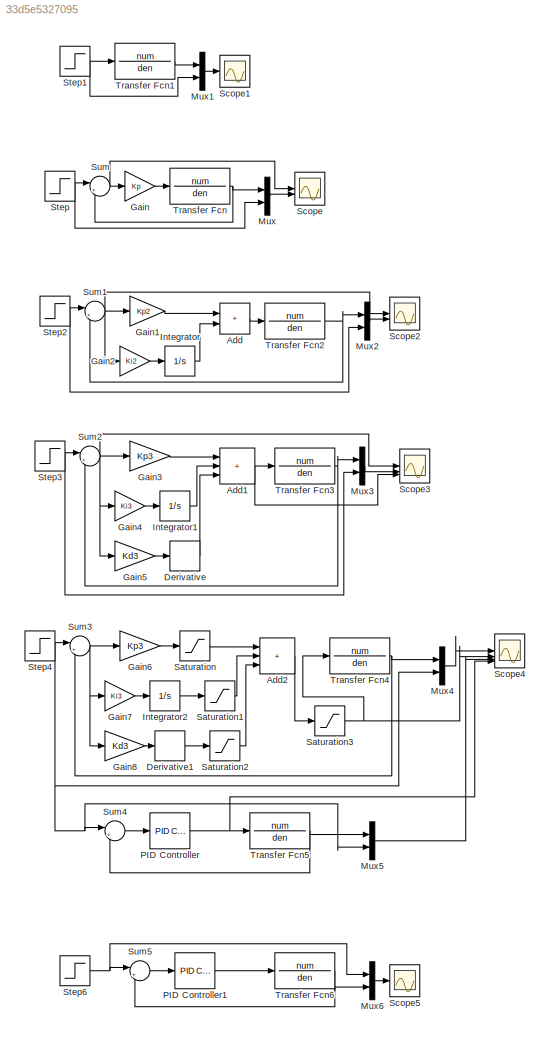
MODEL slx_33d5e5327095
KIND model
CONFIG AbsTol = auto
CONFIG EnableMultiTasking = off
CONFIG FixedStep = 1e-6
CONFIG MaxStep = auto
CONFIG MinStep = auto
CONFIG RelTol = 1e-3
CONFIG SampleTimeConstraint = Unconstrained
CONFIG SolverName = ode4
CONFIG StartTime = 0.0
CONFIG StopTime = 0.050
BLOCK [Sum] Add
  IconShape = rectangular
BLOCK [Sum] Add1
  IconShape = rectangular
  Inputs = +++
BLOCK [Sum] Add2
  IconShape = rectangular
  Inputs = +++
BLOCK [Derivative] Derivative
BLOCK [Derivative] Derivative1
BLOCK [Gain] Gain
  Gain = Kp
BLOCK [Gain] Gain1
  Gain = Kp2
BLOCK [Gain] Gain2
  Gain = Ki2
BLOCK [Gain] Gain3
  Gain = Kp3
BLOCK [Gain] Gain4
  Gain = Ki3
BLOCK [Gain] Gain5
  Gain = Kd3
BLOCK [Gain] Gain6
  Gain = Kp3
BLOCK [Gain] Gain7
  Gain = Ki3
BLOCK [Gain] Gain8
  Gain = Kd3
BLOCK [Integrator] Integrator
BLOCK [Integrator] Integrator1
BLOCK [Integrator] Integrator2
BLOCK [Mux] Mux
  DisplayOption = bar
  Inputs = 2
BLOCK [Mux] Mux1
  DisplayOption = bar
  Inputs = 2
BLOCK [Mux] Mux2
  DisplayOption = bar
  Inputs = 2
BLOCK [Mux] Mux3
  DisplayOption = bar
  Inputs = 2
BLOCK [Mux] Mux4
  DisplayOption = bar
  Inputs = 2
BLOCK [Mux] Mux5
  DisplayOption = bar
  Inputs = 2
BLOCK [Mux] Mux6
  DisplayOption = bar
  Inputs = 2
BLOCK [Reference] PID Controller  REF=slpidlib/PID Controller
  LibrarySourceBlock = simulink/Continuous/PID Controller
  SourceBlock = slpidlib/PID Controller
  SourceType = PID 1dof
BLOCK [Reference] PID Controller1  REF=slpidlib/PID Controller
  LibrarySourceBlock = simulink/Continuous/PID Controller
  SourceBlock = slpidlib/PID Controller
  SourceType = PID 1dof
BLOCK [Saturate] Saturation
  LowerLimit = -15
  UpperLimit = 15
BLOCK [Saturate] Saturation1
  LowerLimit = -15
  UpperLimit = 15
BLOCK [Saturate] Saturation2
  LowerLimit = -15
  UpperLimit = 15
BLOCK [Saturate] Saturation3
  LowerLimit = -15
  UpperLimit = 15
BLOCK [Scope] Scope
  Floating = off
  NumInputPorts = 2
  ScopeSpecificationString = Simulink.scopes.TimeScopeBlockCfg('CurrentConfiguration', extmgr.ConfigurationSet(extmgr.Configuration('Core','General UI',true),extmgr.Configuration('Core','Source UI',true),extmgr.Configuration('Sources','WiredSimulink',true),extmgr.Configuration('Visuals','Time Domain',true,'SerializedDisplays',{struct('MinYLimReal','-5.93815','MaxYLimReal','6.21535','YLabelReal','','MinYLimMag','0.00000','MaxY...<+2296ch>
BLOCK [Scope] Scope1
  Floating = off
  NumInputPorts = 1
  ScopeSpecificationString = Simulink.scopes.TimeScopeBlockCfg('CurrentConfiguration', extmgr.ConfigurationSet(extmgr.Configuration('Core','General UI',true),extmgr.Configuration('Core','Source UI',true),extmgr.Configuration('Sources','WiredSimulink',true,'DataLoggingVariableName','ScopeData1'),extmgr.Configuration('Visuals','Time Domain',true,'SerializedDisplays',{struct('MinYLimReal','-1.0563','MaxYLimReal','9.50672','YLabe...<+1492ch>
BLOCK [Scope] Scope2
  Floating = off
  NumInputPorts = 2
  ScopeSpecificationString = Simulink.scopes.TimeScopeBlockCfg('CurrentConfiguration', extmgr.ConfigurationSet(extmgr.Configuration('Core','General UI',true),extmgr.Configuration('Core','Source UI',true),extmgr.Configuration('Sources','WiredSimulink',true,'DataLoggingVariableName','ScopeData2'),extmgr.Configuration('Visuals','Time Domain',true,'SerializedDisplays',{struct('MinYLimReal','-5.31404','MaxYLimReal','6.146','YLabel...<+2332ch>
BLOCK [Scope] Scope3
  Floating = off
  NumInputPorts = 3
  ScopeSpecificationString = Simulink.scopes.TimeScopeBlockCfg('CurrentConfiguration', extmgr.ConfigurationSet(extmgr.Configuration('Core','General UI',true),extmgr.Configuration('Core','Source UI',true),extmgr.Configuration('Sources','WiredSimulink',true,'DataLoggingVariableName','ScopeData3'),extmgr.Configuration('Visuals','Time Domain',true,'SerializedDisplays',{struct('MinYLimReal','-1.00752','MaxYLimReal','5.6675','YLabe...<+3061ch>
BLOCK [Scope] Scope4
  Floating = off
  NumInputPorts = 4
  ScopeSpecificationString = Simulink.scopes.TimeScopeBlockCfg('CurrentConfiguration', extmgr.ConfigurationSet(extmgr.Configuration('Core','General UI',true),extmgr.Configuration('Core','Source UI',true),extmgr.Configuration('Sources','WiredSimulink',true,'DataLoggingVariableName','ScopeData4'),extmgr.Configuration('Visuals','Time Domain',true,'SerializedDisplays',{struct('MinYLimReal','-0.91239','MaxYLimReal','8.21148','YLab...<+3921ch>
BLOCK [Scope] Scope5
  Floating = off
  NumInputPorts = 1
  ScopeSpecificationString = Simulink.scopes.TimeScopeBlockCfg('CurrentConfiguration', extmgr.ConfigurationSet(extmgr.Configuration('Core','General UI',true),extmgr.Configuration('Core','Source UI',true),extmgr.Configuration('Sources','WiredSimulink',true,'DataLoggingVariableName','ScopeData1'),extmgr.Configuration('Visuals','Time Domain',true,'SerializedDisplays',{struct('MinYLimReal','-0.87414','MaxYLimReal','7.86723','YLab...<+1494ch>
BLOCK [Step] Step
  After = 5
  SampleTime = 0
  Time = 0.01
  VectorParams1D = off
BLOCK [Step] Step1
  After = 5
  SampleTime = 0
  Time = 0.01
  VectorParams1D = off
BLOCK [Step] Step2
  After = 5
  SampleTime = 0
  Time = 0.01
  VectorParams1D = off
BLOCK [Step] Step3
  After = 5
  SampleTime = 0
  Time = 0.01
  VectorParams1D = off
BLOCK [Step] Step4
  After = 5
  SampleTime = 0
  Time = 0.01
  VectorParams1D = off
BLOCK [Step] Step6
  After = 5
  SampleTime = 0
  Time = 0.01
  VectorParams1D = off
BLOCK [Sum] Sum
  Inputs = |+-
BLOCK [Sum] Sum1
  Inputs = |+-
BLOCK [Sum] Sum2
  Inputs = |+-
BLOCK [Sum] Sum3
  Inputs = |+-
BLOCK [Sum] Sum4
  Inputs = |+-
BLOCK [Sum] Sum5
  Inputs = |+-
BLOCK [TransferFcn] Transfer Fcn
  Denominator = den
  Numerator = num
BLOCK [TransferFcn] Transfer Fcn1
  Denominator = den
  Numerator = num
BLOCK [TransferFcn] Transfer Fcn2
  Denominator = den
  Numerator = num
BLOCK [TransferFcn] Transfer Fcn3
  Denominator = den
  Numerator = num
BLOCK [TransferFcn] Transfer Fcn4
  Denominator = den
  Numerator = num
BLOCK [TransferFcn] Transfer Fcn5
  Denominator = den
  Numerator = num
BLOCK [TransferFcn] Transfer Fcn6
  Denominator = den
  Numerator = num
NET Add1:1 -> Scope3:3, Transfer Fcn3:1
LINE Add2:1 -> Saturation3:1
LINE Add:1 -> Transfer Fcn2:1
LINE Derivative1:1 -> Saturation2:1
LINE Derivative:1 -> Add1:3
LINE Gain1:1 -> Add:1
LINE Gain2:1 -> Integrator:1
LINE Gain3:1 -> Add1:1
LINE Gain4:1 -> Integrator1:1
LINE Gain5:1 -> Derivative:1
LINE Gain6:1 -> Saturation:1
LINE Gain7:1 -> Integrator2:1
LINE Gain8:1 -> Derivative1:1
LINE Gain:1 -> Transfer Fcn:1
LINE Integrator1:1 -> Add1:2
LINE Integrator2:1 -> Saturation1:1
LINE Integrator:1 -> Add:2
LINE Mux1:1 -> Scope1:1
LINE Mux2:1 -> Scope2:2
LINE Mux3:1 -> Scope3:2
LINE Mux4:1 -> Scope4:1
LINE Mux5:1 -> Scope4:3
LINE Mux6:1 -> Scope5:1
LINE Mux:1 -> Scope:2
LINE PID Controller1:1 -> Transfer Fcn6:1
NET PID Controller:1 -> Scope4:4, Transfer Fcn5:1
LINE Saturation1:1 -> Add2:2
LINE Saturation2:1 -> Add2:3
NET Saturation3:1 -> Scope4:2, Transfer Fcn4:1
LINE Saturation:1 -> Add2:1
NET Step1:1 -> Mux1:2, Transfer Fcn1:1
NET Step2:1 -> Mux2:2, Sum1:1
NET Step3:1 -> Mux3:2, Sum2:1
NET Step4:1 -> Mux4:2, Mux5:2, Sum3:1, Sum4:1
NET Step6:1 -> Mux6:1, Sum5:1
NET Step:1 -> Mux:2, Sum:1
NET Sum1:1 -> Gain1:1, Gain2:1, Scope2:1
NET Sum2:1 -> Gain3:1, Gain4:1, Gain5:1, Scope3:1
NET Sum3:1 -> Gain6:1, Gain7:1, Gain8:1
LINE Sum4:1 -> PID Controller:1
LINE Sum5:1 -> PID Controller1:1
NET Sum:1 -> Gain:1, Scope:1
LINE Transfer Fcn1:1 -> Mux1:1
NET Transfer Fcn2:1 -> Mux2:1, Sum1:2
NET Transfer Fcn3:1 -> Mux3:1, Sum2:2
NET Transfer Fcn4:1 -> Mux4:1, Sum3:2
NET Transfer Fcn5:1 -> Mux5:1, Sum4:2
NET Transfer Fcn6:1 -> Mux6:2, Sum5:2
NET Transfer Fcn:1 -> Mux:1, Sum:2
note: NET lines group one-source signal fan-out (src -> all destinations, sorted); 1:1 wires keep LINE
